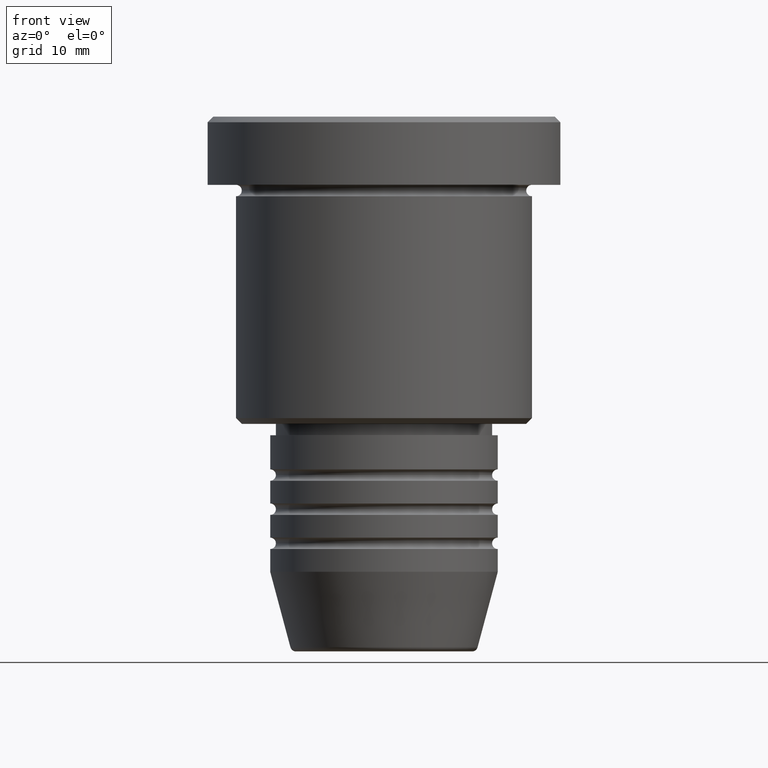
[diagram: clean part render]
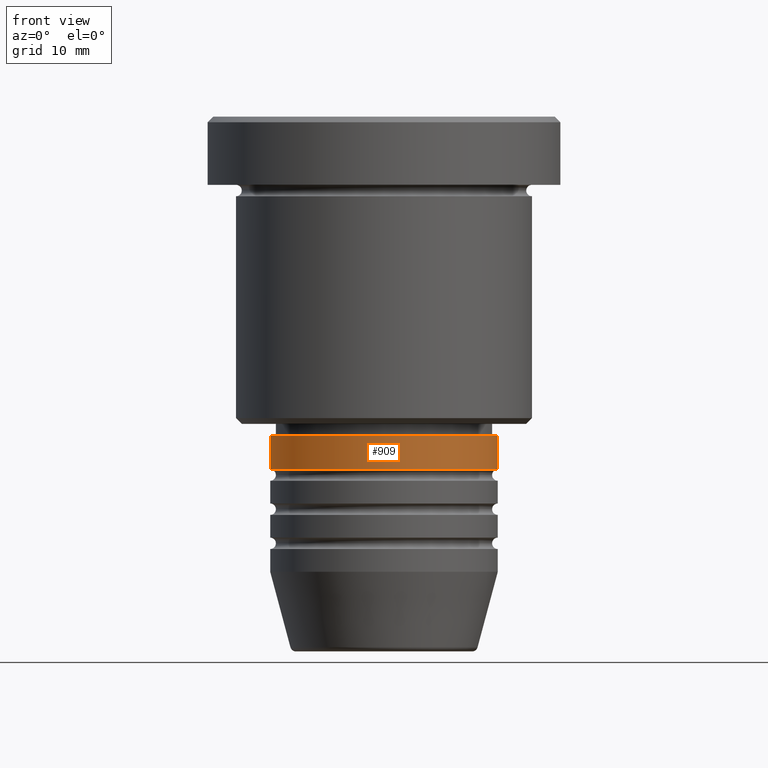
[diagram: same view with one face highlighted and labeled with its STEP entity id]
A machine part, front view. The second image highlights one B-rep face of the part: STEP entity #909.
In plain terms, the highlighted cylindrical surface (partial cylindrical patch) has radius 10 mm, axis along (-0, -0, 1).
Its self-contained STEP definition (entity closure, byte-faithful):
#140 = DIRECTION ( 'NONE',  ( -0.000000000000000000, -0.000000000000000000, 1.000000000000000000 ) ) ;
#167 = CIRCLE ( 'NONE', #461, 10.00000000000000000 ) ;
#186 = FACE_OUTER_BOUND ( 'NONE', #641, .T. ) ;
#191 = ORIENTED_EDGE ( 'NONE', *, *, #697, .F. ) ;
#215 = DIRECTION ( 'NONE',  ( -0.000000000000000000, -0.000000000000000000, 1.000000000000000000 ) ) ;
#297 = VECTOR ( 'NONE', #140, 1000.000000000000000 ) ;
#316 = VERTEX_POINT ( 'NONE', #1095 ) ;
#336 = CARTESIAN_POINT ( 'NONE',  ( -10.00000000000000000, 1.224646799147353256E-15, 0.000000000000000000 ) ) ;
#341 = ORIENTED_EDGE ( 'NONE', *, *, #1106, .F. ) ;
#363 = DIRECTION ( 'NONE',  ( -0.000000000000000000, -0.000000000000000000, 1.000000000000000000 ) ) ;
#374 = VERTEX_POINT ( 'NONE', #639 ) ;
#396 = DIRECTION ( 'NONE',  ( -0.000000000000000000, -0.000000000000000000, 1.000000000000000000 ) ) ;
#410 = CARTESIAN_POINT ( 'NONE',  ( 10.00000000000000000, 0.000000000000000000, 0.000000000000000000 ) ) ;
#411 = VERTEX_POINT ( 'NONE', #785 ) ;
#450 = CYLINDRICAL_SURFACE ( 'NONE', #821, 10.00000000000000000 ) ;
#461 = AXIS2_PLACEMENT_3D ( 'NONE', #517, #215, #814 ) ;
#494 = ORIENTED_EDGE ( 'NONE', *, *, #912, .T. ) ;
#497 = LINE ( 'NONE', #410, #581 ) ;
#517 = CARTESIAN_POINT ( 'NONE',  ( 0.000000000000000000, 0.000000000000000000, -30.99999999999997868 ) ) ;
#579 = LINE ( 'NONE', #336, #297 ) ;
#581 = VECTOR ( 'NONE', #692, 1000.000000000000000 ) ;
#610 = DIRECTION ( 'NONE',  ( 1.000000000000000000, 0.000000000000000000, 0.000000000000000000 ) ) ;
#639 = CARTESIAN_POINT ( 'NONE',  ( -10.00000000000000000, 1.224646799147353256E-15, -28.00000000000000355 ) ) ;
#641 = EDGE_LOOP ( 'NONE', ( #191, #494, #776, #341 ) ) ;
#692 = DIRECTION ( 'NONE',  ( -0.000000000000000000, -0.000000000000000000, 1.000000000000000000 ) ) ;
#697 = EDGE_CURVE ( 'NONE', #1061, #374, #579, .T. ) ;
#713 = EDGE_CURVE ( 'NONE', #411, #316, #497, .T. ) ;
#759 = CARTESIAN_POINT ( 'NONE',  ( 0.000000000000000000, 0.000000000000000000, -28.00000000000000355 ) ) ;
#776 = ORIENTED_EDGE ( 'NONE', *, *, #713, .T. ) ;
#785 = CARTESIAN_POINT ( 'NONE',  ( 10.00000000000000000, 0.000000000000000000, -30.99999999999997868 ) ) ;
#802 = AXIS2_PLACEMENT_3D ( 'NONE', #759, #396, #959 ) ;
#807 = CARTESIAN_POINT ( 'NONE',  ( 0.000000000000000000, 0.000000000000000000, 0.000000000000000000 ) ) ;
#814 = DIRECTION ( 'NONE',  ( 1.000000000000000000, 0.000000000000000000, 0.000000000000000000 ) ) ;
#821 = AXIS2_PLACEMENT_3D ( 'NONE', #807, #363, #610 ) ;
#822 = CIRCLE ( 'NONE', #802, 10.00000000000000000 ) ;
#909 = ADVANCED_FACE ( 'NONE', ( #186 ), #450, .T. ) ;
#912 = EDGE_CURVE ( 'NONE', #1061, #411, #167, .T. ) ;
#917 = CARTESIAN_POINT ( 'NONE',  ( -10.00000000000000000, 1.224646799147353256E-15, -30.99999999999997868 ) ) ;
#959 = DIRECTION ( 'NONE',  ( 1.000000000000000000, 0.000000000000000000, 0.000000000000000000 ) ) ;
#1061 = VERTEX_POINT ( 'NONE', #917 ) ;
#1095 = CARTESIAN_POINT ( 'NONE',  ( 10.00000000000000000, 0.000000000000000000, -28.00000000000000355 ) ) ;
#1106 = EDGE_CURVE ( 'NONE', #374, #316, #822, .T. ) ;